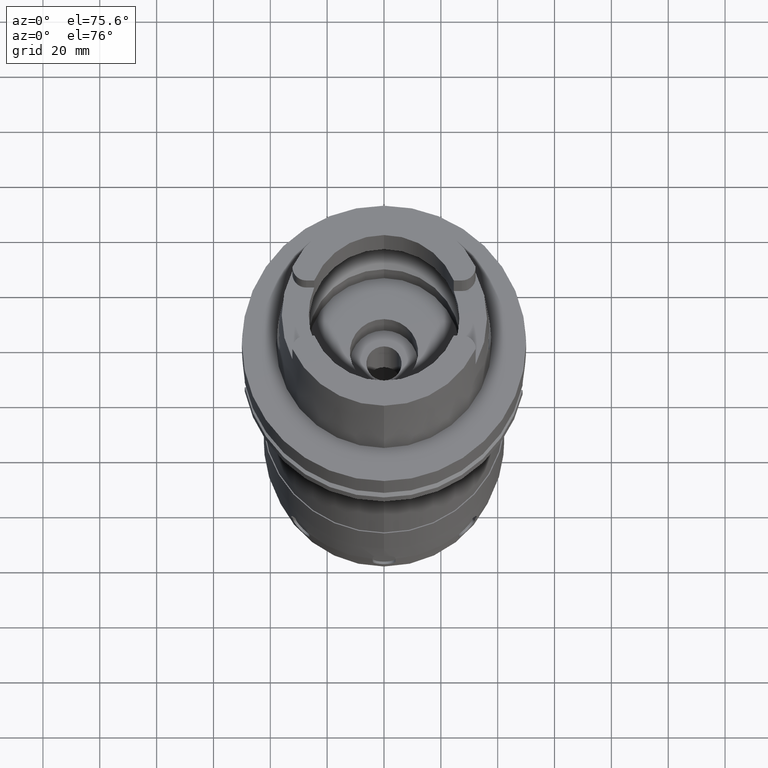
[diagram: clean part render]
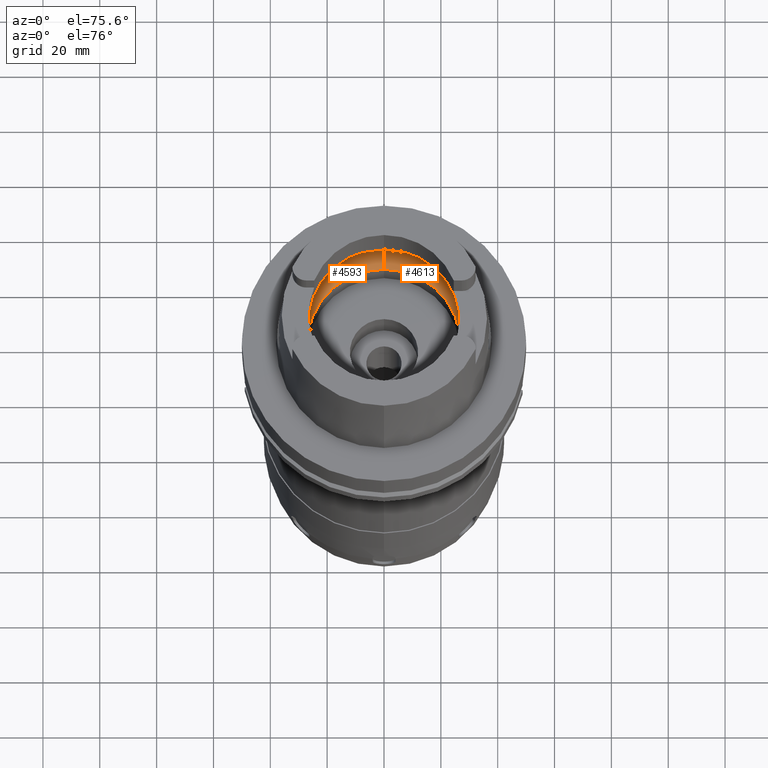
[diagram: same view with one multi-face feature highlighted, each face labeled with its STEP entity id]
A machine part, auxiliary view. The highlighted faces form ONE feature: a constant-radius fillet chain: 2 tangent blend faces with common blend radius 12 mm. The faces share edges in the B-rep.
Their STEP definitions:
[1] entity #4613 (Torus):
#640=CARTESIAN_POINT('',(0.E0,-1.95E1,9.496624327026E0));
#641=DIRECTION('',(-1.E0,0.E0,0.E0));
#642=DIRECTION('',(0.E0,-6.166666666667E-1,-7.872243785746E-1));
#643=AXIS2_PLACEMENT_3D('',#640,#641,#642);
#656=CARTESIAN_POINT('',(3.148971910754E1,0.E0,9.E0));
#657=CARTESIAN_POINT('',(3.148971910754E1,-2.740816369241E-1,9.E0));
#658=CARTESIAN_POINT('',(3.148416657244E1,-8.216274657312E-1,9.037606582852E0));
#659=CARTESIAN_POINT('',(3.145843229729E1,-1.626122314408E0,9.205188491873E0));
#660=CARTESIAN_POINT('',(3.142817542026E1,-2.140654635827E0,9.388263020288E0));
#661=CARTESIAN_POINT('',(3.140918884336E1,-2.390158196044E0,9.496624327026E0));
#666=CARTESIAN_POINT('',(0.E0,0.E0,9.496624327026E0));
#667=DIRECTION('',(0.E0,0.E0,-1.E0));
#668=DIRECTION('',(9.971171061384E-1,-7.587803796965E-2,0.E0));
#669=AXIS2_PLACEMENT_3D('',#666,#667,#668);
#674=CARTESIAN_POINT('',(0.E0,0.E0,4.993178413023E-2));
#675=DIRECTION('',(0.E0,0.E0,1.E0));
#676=DIRECTION('',(0.E0,-1.E0,0.E0));
#677=AXIS2_PLACEMENT_3D('',#674,#675,#676);
#682=CARTESIAN_POINT('',(0.E0,1.95E1,9.496624327026E0));
#683=DIRECTION('',(1.E0,0.E0,0.E0));
#684=DIRECTION('',(0.E0,6.166666666667E-1,-7.872243785746E-1));
#685=AXIS2_PLACEMENT_3D('',#682,#683,#684);
#690=CARTESIAN_POINT('',(0.E0,0.E0,9.496624327026E0));
#691=DIRECTION('',(0.E0,0.E0,-1.E0));
#692=DIRECTION('',(0.E0,1.E0,0.E0));
#693=AXIS2_PLACEMENT_3D('',#690,#691,#692);
#698=CARTESIAN_POINT('',(3.140918884336E1,2.390158196044E0,9.496624327026E0));
#699=CARTESIAN_POINT('',(3.142817530553E1,2.140656143518E0,9.388263675090E0));
#700=CARTESIAN_POINT('',(3.145843215351E1,1.626125992770E0,9.205189397203E0));
#701=CARTESIAN_POINT('',(3.148416663622E1,8.216256622719E-1,9.037606172252E0));
#702=CARTESIAN_POINT('',(3.148971910754E1,2.740808193429E-1,9.E0));
#703=CARTESIAN_POINT('',(3.148971910754E1,0.E0,9.E0));
#715=CARTESIAN_POINT('',(3.140918884336E1,-2.390158196044E0,9.496624327026E0));
#746=CARTESIAN_POINT('',(3.140918884336E1,2.390158196044E0,9.496624327026E0));
#3756=CARTESIAN_POINT('',(0.E0,-3.15E1,9.496624327026E0));
#3757=VERTEX_POINT('',#3756);
#3758=CARTESIAN_POINT('',(0.E0,3.15E1,9.496624327026E0));
#3759=VERTEX_POINT('',#3758);
#3764=VERTEX_POINT('',#715);
#3766=VERTEX_POINT('',#656);
#3767=VERTEX_POINT('',#746);
#3768=CARTESIAN_POINT('',(0.E0,2.69E1,4.993178413023E-2));
#3769=VERTEX_POINT('',#3768);
#3770=CARTESIAN_POINT('',(0.E0,-2.69E1,4.993178413022E-2));
#3771=VERTEX_POINT('',#3770);
#4594=CARTESIAN_POINT('',(0.E0,0.E0,9.496624327026E0));
#4595=DIRECTION('',(0.E0,0.E0,1.E0));
#4596=DIRECTION('',(0.E0,1.E0,0.E0));
#4597=AXIS2_PLACEMENT_3D('',#4594,#4595,#4596);
#4598=TOROIDAL_SURFACE('',#4597,1.95E1,1.2E1);
#4600=ORIENTED_EDGE('',*,*,#4599,.T.);
#4602=ORIENTED_EDGE('',*,*,#4601,.T.);
#4603=ORIENTED_EDGE('',*,*,#4588,.F.);
#4605=ORIENTED_EDGE('',*,*,#4604,.T.);
#4606=ORIENTED_EDGE('',*,*,#4584,.T.);
#4608=ORIENTED_EDGE('',*,*,#4607,.T.);
#4610=ORIENTED_EDGE('',*,*,#4609,.T.);
#4611=EDGE_LOOP('',(#4600,#4602,#4603,#4605,#4606,#4608,#4610));
#4612=FACE_OUTER_BOUND('',#4611,.F.);
#644=CIRCLE('',#643,1.2E1);
#662=B_SPLINE_CURVE_WITH_KNOTS('',3,(#656,#657,#658,#659,#660,#661),
.UNSPECIFIED.,.F.,.F.,(4,1,1,4),(0.E0,3.333333333333E-1,6.666666666667E-1,1.E0),
.UNSPECIFIED.);
#670=CIRCLE('',#669,3.15E1);
#678=CIRCLE('',#677,2.69E1);
#686=CIRCLE('',#685,1.2E1);
#694=CIRCLE('',#693,3.15E1);
#704=B_SPLINE_CURVE_WITH_KNOTS('',3,(#698,#699,#700,#701,#702,#703),
.UNSPECIFIED.,.F.,.F.,(4,1,1,4),(0.E0,3.333333333333E-1,6.666666666667E-1,1.E0),
.UNSPECIFIED.);
#4584=EDGE_CURVE('',#3769,#3759,#686,.T.);
#4588=EDGE_CURVE('',#3771,#3757,#644,.T.);
#4599=EDGE_CURVE('',#3766,#3764,#662,.T.);
#4601=EDGE_CURVE('',#3764,#3757,#670,.T.);
#4604=EDGE_CURVE('',#3771,#3769,#678,.T.);
#4607=EDGE_CURVE('',#3759,#3767,#694,.T.);
#4609=EDGE_CURVE('',#3767,#3766,#704,.T.);
#4613=ADVANCED_FACE('',(#4612),#4598,.F.);
[2] entity #4593 (Torus):
#560=CARTESIAN_POINT('',(-3.140918884336E1,-2.390158196044E0,9.496624327026E0));
#604=CARTESIAN_POINT('',(-3.140918884336E1,-2.390158196044E0,9.496624327026E0));
#605=CARTESIAN_POINT('',(-3.142817545704E1,-2.140654152533E0,9.388262810390E0));
#606=CARTESIAN_POINT('',(-3.145843235401E1,-1.626121130666E0,9.205188134635E0));
#607=CARTESIAN_POINT('',(-3.148416659375E1,-8.216262390445E-1,
9.037606438216E0));
#608=CARTESIAN_POINT('',(-3.148971910754E1,-2.740811097498E-1,9.E0));
#609=CARTESIAN_POINT('',(-3.148971910754E1,0.E0,9.E0));
#614=CARTESIAN_POINT('',(-3.148971910754E1,0.E0,9.E0));
#615=CARTESIAN_POINT('',(-3.148971910754E1,2.740813517952E-1,9.E0));
#616=CARTESIAN_POINT('',(-3.148416661469E1,8.216269012394E-1,9.037606318337E0));
#617=CARTESIAN_POINT('',(-3.145843209623E1,1.626127188331E0,9.205189758010E0));
#618=CARTESIAN_POINT('',(-3.142817526839E1,2.140656631637E0,9.388263887083E0));
#619=CARTESIAN_POINT('',(-3.140918884336E1,2.390158196044E0,9.496624327026E0));
#624=CARTESIAN_POINT('',(0.E0,0.E0,9.496624327026E0));
#625=DIRECTION('',(0.E0,0.E0,-1.E0));
#626=DIRECTION('',(-9.971171061384E-1,7.587803796965E-2,0.E0));
#627=AXIS2_PLACEMENT_3D('',#624,#625,#626);
#632=CARTESIAN_POINT('',(0.E0,0.E0,4.993178413022E-2));
#633=DIRECTION('',(0.E0,0.E0,1.E0));
#634=DIRECTION('',(0.E0,1.E0,0.E0));
#635=AXIS2_PLACEMENT_3D('',#632,#633,#634);
#640=CARTESIAN_POINT('',(0.E0,-1.95E1,9.496624327026E0));
#641=DIRECTION('',(-1.E0,0.E0,0.E0));
#642=DIRECTION('',(0.E0,-6.166666666667E-1,-7.872243785746E-1));
#643=AXIS2_PLACEMENT_3D('',#640,#641,#642);
#648=CARTESIAN_POINT('',(0.E0,0.E0,9.496624327026E0));
#649=DIRECTION('',(0.E0,0.E0,-1.E0));
#650=DIRECTION('',(0.E0,-1.E0,0.E0));
#651=AXIS2_PLACEMENT_3D('',#648,#649,#650);
#682=CARTESIAN_POINT('',(0.E0,1.95E1,9.496624327026E0));
#683=DIRECTION('',(1.E0,0.E0,0.E0));
#684=DIRECTION('',(0.E0,6.166666666667E-1,-7.872243785746E-1));
#685=AXIS2_PLACEMENT_3D('',#682,#683,#684);
#3755=VERTEX_POINT('',#560);
#3756=CARTESIAN_POINT('',(0.E0,-3.15E1,9.496624327026E0));
#3757=VERTEX_POINT('',#3756);
#3758=CARTESIAN_POINT('',(0.E0,3.15E1,9.496624327026E0));
#3759=VERTEX_POINT('',#3758);
#3760=CARTESIAN_POINT('',(-3.140918884336E1,2.390158196044E0,9.496624327026E0));
#3761=VERTEX_POINT('',#3760);
#3762=CARTESIAN_POINT('',(-3.148971910754E1,0.E0,9.E0));
#3763=VERTEX_POINT('',#3762);
#3768=CARTESIAN_POINT('',(0.E0,2.69E1,4.993178413023E-2));
#3769=VERTEX_POINT('',#3768);
#3770=CARTESIAN_POINT('',(0.E0,-2.69E1,4.993178413022E-2));
#3771=VERTEX_POINT('',#3770);
#4576=CARTESIAN_POINT('',(0.E0,0.E0,9.496624327026E0));
#4577=DIRECTION('',(0.E0,0.E0,1.E0));
#4578=DIRECTION('',(0.E0,1.E0,0.E0));
#4579=AXIS2_PLACEMENT_3D('',#4576,#4577,#4578);
#4580=TOROIDAL_SURFACE('',#4579,1.95E1,1.2E1);
#4581=ORIENTED_EDGE('',*,*,#4557,.T.);
#4582=ORIENTED_EDGE('',*,*,#4568,.T.);
#4583=ORIENTED_EDGE('',*,*,#4539,.T.);
#4585=ORIENTED_EDGE('',*,*,#4584,.F.);
#4587=ORIENTED_EDGE('',*,*,#4586,.T.);
#4589=ORIENTED_EDGE('',*,*,#4588,.T.);
#4590=ORIENTED_EDGE('',*,*,#4532,.T.);
#4591=EDGE_LOOP('',(#4581,#4582,#4583,#4585,#4587,#4589,#4590));
#4592=FACE_OUTER_BOUND('',#4591,.F.);
#610=B_SPLINE_CURVE_WITH_KNOTS('',3,(#604,#605,#606,#607,#608,#609),
.UNSPECIFIED.,.F.,.F.,(4,1,1,4),(0.E0,3.333333333333E-1,6.666666666667E-1,1.E0),
.UNSPECIFIED.);
#620=B_SPLINE_CURVE_WITH_KNOTS('',3,(#614,#615,#616,#617,#618,#619),
.UNSPECIFIED.,.F.,.F.,(4,1,1,4),(0.E0,3.333333333333E-1,6.666666666667E-1,1.E0),
.UNSPECIFIED.);
#628=CIRCLE('',#627,3.15E1);
#636=CIRCLE('',#635,2.69E1);
#644=CIRCLE('',#643,1.2E1);
#652=CIRCLE('',#651,3.15E1);
#686=CIRCLE('',#685,1.2E1);
#4532=EDGE_CURVE('',#3757,#3755,#652,.T.);
#4539=EDGE_CURVE('',#3761,#3759,#628,.T.);
#4557=EDGE_CURVE('',#3755,#3763,#610,.T.);
#4568=EDGE_CURVE('',#3763,#3761,#620,.T.);
#4584=EDGE_CURVE('',#3769,#3759,#686,.T.);
#4586=EDGE_CURVE('',#3769,#3771,#636,.T.);
#4588=EDGE_CURVE('',#3771,#3757,#644,.T.);
#4593=ADVANCED_FACE('',(#4592),#4580,.F.);